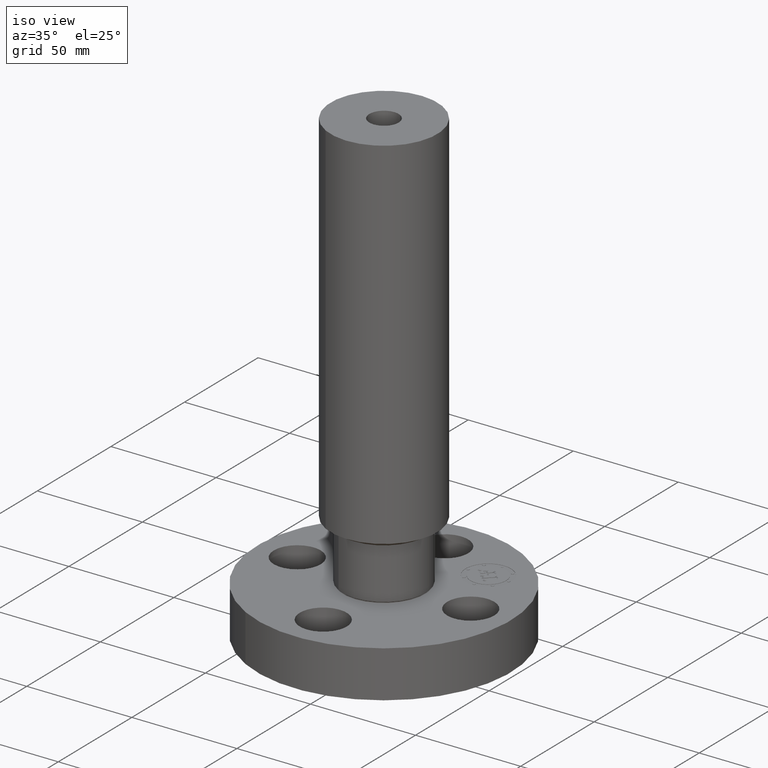
[diagram: clean part render]
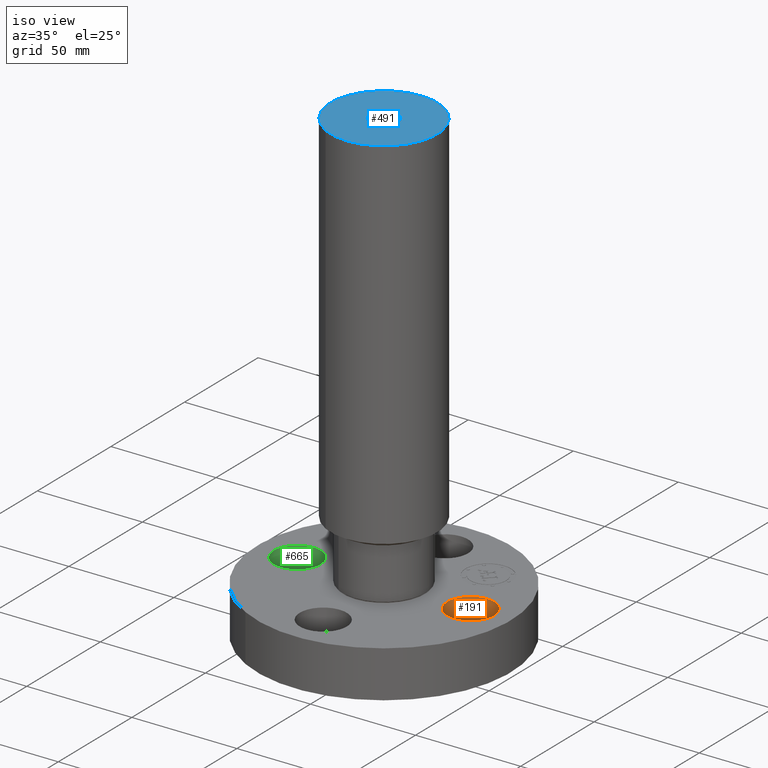
[diagram: same view with three faces highlighted in distinct colors, each labeled with its STEP entity id]
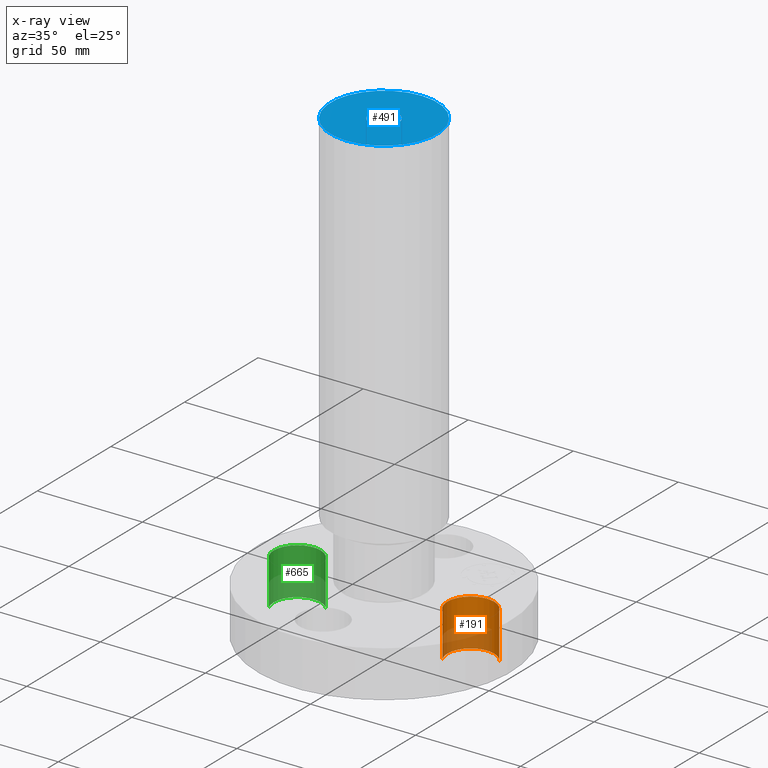
[diagram: x-ray of the same camera — body ghosted, the three highlighted faces saturated]
A machine part, iso view with three faces highlighted in distinct colors.
The next image is the same camera in x-ray (body ghosted, the three faces saturated) — at least one of them is partly hidden behind the body in this view.
Their STEP definitions:

[orange] entity #191 — the highlighted cylindrical surface (edge-blend (fillet) strip) has radius 11.176 mm, axis along (0, -0, 1).
#38=AXIS2_PLACEMENT_3D('Cylinder Axis2P3D',#35,#36,#37) ;
#100=AXIS2_PLACEMENT_3D('Circle Axis2P3D',#98,#99,$) ;
#182=AXIS2_PLACEMENT_3D('Circle Axis2P3D',#180,#181,$) ;
#35=CARTESIAN_POINT('Axis2P3D Location',(1.62500000001,0.,0.00393700787402)) ;
#40=CARTESIAN_POINT('Line Origine',(1.23886367277,-0.210947236987,0.440000000002)) ;
#44=CARTESIAN_POINT('Vertex',(1.23886367277,-0.210947236987,0.880000000004)) ;
#46=CARTESIAN_POINT('Vertex',(1.23886367277,-0.210947236987,2.2401153548E-016)) ;
#53=CARTESIAN_POINT('Vertex',(2.01113632724,0.210947236987,0.880000000004)) ;
#56=CARTESIAN_POINT('Line Origine',(2.01113632724,0.210947236987,0.440000000002)) ;
#60=CARTESIAN_POINT('Vertex',(2.01113632724,0.210947236987,2.2401153548E-016)) ;
#98=CARTESIAN_POINT('Axis2P3D Location',(1.62500000001,1.39870617276E-016,0.)) ;
#180=CARTESIAN_POINT('Axis2P3D Location',(1.62500000001,0.,0.880000000004)) ;
#36=DIRECTION('Axis2P3D Direction',(0.,-0.,0.0393700787402)) ;
#37=DIRECTION('Axis2P3D XDirection',(0.0345504945626,0.0188750212049,0.)) ;
#41=DIRECTION('Vector Direction',(0.,0.,0.0393700787402)) ;
#57=DIRECTION('Vector Direction',(0.,0.,0.0393700787402)) ;
#99=DIRECTION('Axis2P3D Direction',(0.,0.,-0.0393700787402)) ;
#181=DIRECTION('Axis2P3D Direction',(0.,-0.,0.0393700787402)) ;
#42=VECTOR('Line Direction',#41,0.0393700787402) ;
#58=VECTOR('Line Direction',#57,0.0393700787402) ;
#186=ORIENTED_EDGE('',*,*,#62,.F.) ;
#187=ORIENTED_EDGE('',*,*,#184,.F.) ;
#188=ORIENTED_EDGE('',*,*,#48,.T.) ;
#189=ORIENTED_EDGE('',*,*,#102,.T.) ;
#191=ADVANCED_FACE('PartBody',(#190),#39,.F.) ;
#101=CIRCLE('generated circle',#100,0.440000000002) ;
#183=CIRCLE('generated circle',#182,0.440000000002) ;
#39=CYLINDRICAL_SURFACE('generated cylinder',#38,0.440000000002) ;
#48=EDGE_CURVE('',#45,#47,#43,.F.) ;
#62=EDGE_CURVE('',#54,#61,#59,.F.) ;
#102=EDGE_CURVE('',#47,#61,#101,.T.) ;
#184=EDGE_CURVE('',#45,#54,#183,.F.) ;
#185=EDGE_LOOP('',(#186,#187,#188,#189)) ;
#190=FACE_OUTER_BOUND('',#185,.T.) ;
#43=LINE('Line',#40,#42) ;
#59=LINE('Line',#56,#58) ;
#45=VERTEX_POINT('',#44) ;
#47=VERTEX_POINT('',#46) ;
#54=VERTEX_POINT('',#53) ;
#61=VERTEX_POINT('',#60) ;

[blue] entity #491 — the highlighted planar face has unit normal (0, 0, -1).
#435=AXIS2_PLACEMENT_3D('Circle Axis2P3D',#433,#434,$) ;
#454=AXIS2_PLACEMENT_3D('Circle Axis2P3D',#452,#453,$) ;
#467=AXIS2_PLACEMENT_3D('Plane Axis2P3D',#464,#465,#466) ;
#475=AXIS2_PLACEMENT_3D('Circle Axis2P3D',#473,#474,$) ;
#484=AXIS2_PLACEMENT_3D('Circle Axis2P3D',#482,#483,$) ;
#430=CARTESIAN_POINT('Vertex',(0.479425538606,0.877582561894,8.75000000004)) ;
#433=CARTESIAN_POINT('Axis2P3D Location',(0.,0.,8.75000000003)) ;
#437=CARTESIAN_POINT('Vertex',(-0.479425538606,-0.877582561894,8.75000000004)) ;
#452=CARTESIAN_POINT('Axis2P3D Location',(0.,0.,8.75000000003)) ;
#464=CARTESIAN_POINT('Axis2P3D Location',(0.,1.,8.75000000003)) ;
#473=CARTESIAN_POINT('Axis2P3D Location',(0.,0.,8.75000000003)) ;
#477=CARTESIAN_POINT('Vertex',(-0.131842023117,-0.241335204521,8.75000000004)) ;
#479=CARTESIAN_POINT('Vertex',(0.131842023117,0.241335204521,8.75000000004)) ;
#482=CARTESIAN_POINT('Axis2P3D Location',(0.,0.,8.75000000003)) ;
#434=DIRECTION('Axis2P3D Direction',(0.,0.,-0.0393700787402)) ;
#453=DIRECTION('Axis2P3D Direction',(0.,0.,-0.0393700787402)) ;
#465=DIRECTION('Axis2P3D Direction',(0.,0.,-0.0393700787402)) ;
#466=DIRECTION('Axis2P3D XDirection',(0.0393700787402,0.,0.)) ;
#474=DIRECTION('Axis2P3D Direction',(0.,0.,-0.0393700787402)) ;
#483=DIRECTION('Axis2P3D Direction',(0.,0.,-0.0393700787402)) ;
#470=ORIENTED_EDGE('',*,*,#439,.F.) ;
#471=ORIENTED_EDGE('',*,*,#456,.F.) ;
#488=ORIENTED_EDGE('',*,*,#481,.T.) ;
#489=ORIENTED_EDGE('',*,*,#486,.T.) ;
#490=FACE_BOUND('',#487,.T.) ;
#491=ADVANCED_FACE('PartBody',(#472,#490),#468,.F.) ;
#436=CIRCLE('generated circle',#435,1.) ;
#455=CIRCLE('generated circle',#454,1.) ;
#476=CIRCLE('generated circle',#475,0.275000000001) ;
#485=CIRCLE('generated circle',#484,0.275000000001) ;
#439=EDGE_CURVE('',#431,#438,#436,.T.) ;
#456=EDGE_CURVE('',#438,#431,#455,.T.) ;
#481=EDGE_CURVE('',#478,#480,#476,.T.) ;
#486=EDGE_CURVE('',#480,#478,#485,.T.) ;
#469=EDGE_LOOP('',(#470,#471)) ;
#487=EDGE_LOOP('',(#488,#489)) ;
#472=FACE_OUTER_BOUND('',#469,.T.) ;
#468=PLANE('',#467) ;
#431=VERTEX_POINT('',#430) ;
#438=VERTEX_POINT('',#437) ;
#478=VERTEX_POINT('',#477) ;
#480=VERTEX_POINT('',#479) ;

[green] entity #665 — the highlighted cylindrical surface (edge-blend (fillet) strip) has radius 11.176 mm, axis along (0, 0, 1).
#145=AXIS2_PLACEMENT_3D('Circle Axis2P3D',#143,#144,$) ;
#638=AXIS2_PLACEMENT_3D('Cylinder Axis2P3D',#635,#636,#637) ;
#649=AXIS2_PLACEMENT_3D('Circle Axis2P3D',#647,#648,$) ;
#143=CARTESIAN_POINT('Axis2P3D Location',(-1.62500000001,-1.39870617276E-016,0.)) ;
#147=CARTESIAN_POINT('Vertex',(-2.01113632724,-0.210947236987,0.)) ;
#149=CARTESIAN_POINT('Vertex',(-1.23886367277,0.210947236987,0.)) ;
#635=CARTESIAN_POINT('Axis2P3D Location',(-1.62500000001,-1.99005104862E-016,0.00393700787402)) ;
#640=CARTESIAN_POINT('Line Origine',(-1.23886367277,0.210947236987,0.440000000002)) ;
#644=CARTESIAN_POINT('Vertex',(-1.23886367277,0.210947236987,0.880000000004)) ;
#647=CARTESIAN_POINT('Axis2P3D Location',(-1.62500000001,-1.99005104862E-016,0.880000000004)) ;
#651=CARTESIAN_POINT('Vertex',(-2.01113632724,-0.210947236987,0.880000000004)) ;
#654=CARTESIAN_POINT('Line Origine',(-2.01113632724,-0.210947236987,0.440000000002)) ;
#144=DIRECTION('Axis2P3D Direction',(0.,0.,-0.0393700787402)) ;
#636=DIRECTION('Axis2P3D Direction',(0.,0.,0.0393700787402)) ;
#637=DIRECTION('Axis2P3D XDirection',(-0.0345504945626,-0.0188750212049,0.)) ;
#641=DIRECTION('Vector Direction',(0.,0.,0.0393700787402)) ;
#648=DIRECTION('Axis2P3D Direction',(0.,0.,0.0393700787402)) ;
#655=DIRECTION('Vector Direction',(0.,0.,0.0393700787402)) ;
#642=VECTOR('Line Direction',#641,0.0393700787402) ;
#656=VECTOR('Line Direction',#655,0.0393700787402) ;
#660=ORIENTED_EDGE('',*,*,#646,.F.) ;
#661=ORIENTED_EDGE('',*,*,#653,.F.) ;
#662=ORIENTED_EDGE('',*,*,#658,.T.) ;
#663=ORIENTED_EDGE('',*,*,#151,.T.) ;
#665=ADVANCED_FACE('PartBody',(#664),#639,.F.) ;
#146=CIRCLE('generated circle',#145,0.440000000002) ;
#650=CIRCLE('generated circle',#649,0.440000000002) ;
#639=CYLINDRICAL_SURFACE('generated cylinder',#638,0.440000000002) ;
#151=EDGE_CURVE('',#148,#150,#146,.T.) ;
#646=EDGE_CURVE('',#645,#150,#643,.F.) ;
#653=EDGE_CURVE('',#652,#645,#650,.F.) ;
#658=EDGE_CURVE('',#652,#148,#657,.F.) ;
#659=EDGE_LOOP('',(#660,#661,#662,#663)) ;
#664=FACE_OUTER_BOUND('',#659,.T.) ;
#643=LINE('Line',#640,#642) ;
#657=LINE('Line',#654,#656) ;
#148=VERTEX_POINT('',#147) ;
#150=VERTEX_POINT('',#149) ;
#645=VERTEX_POINT('',#644) ;
#652=VERTEX_POINT('',#651) ;